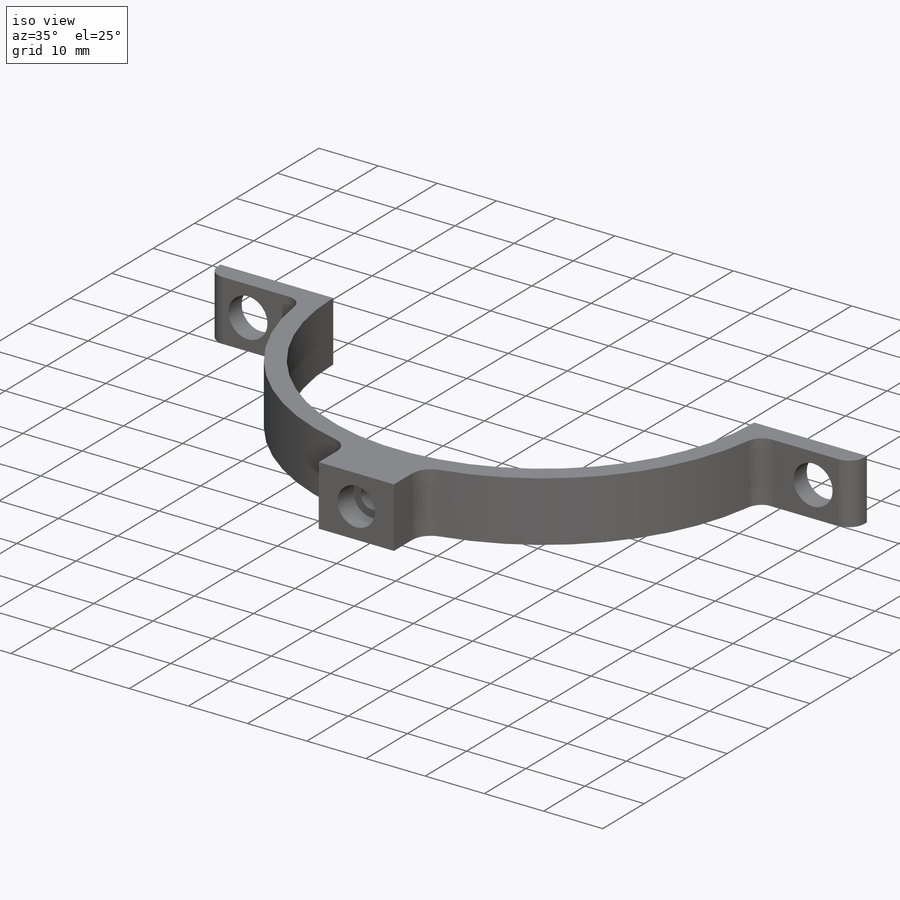
[diagram: iso view]
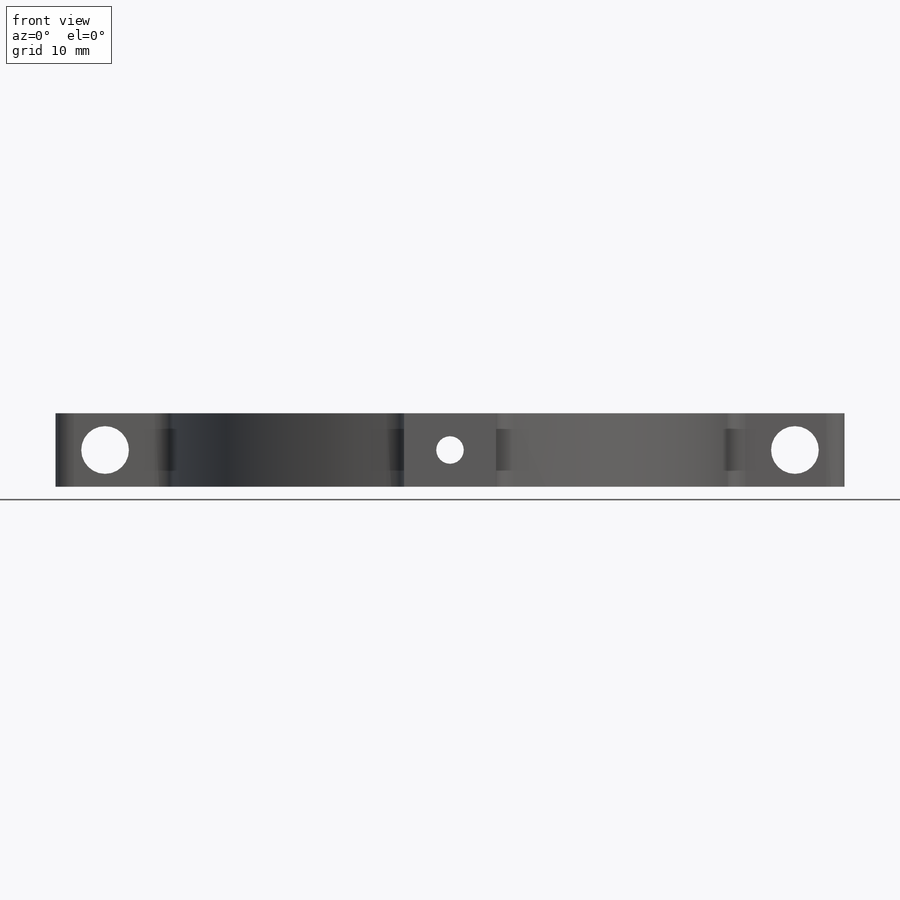
[diagram: front view]
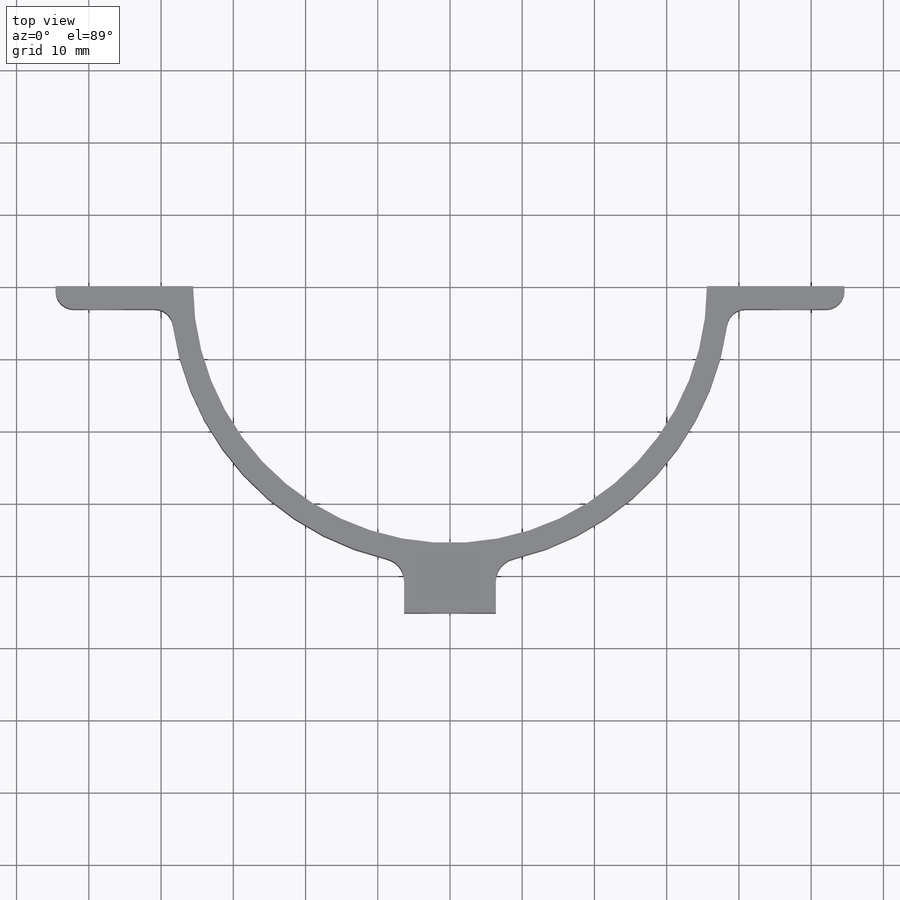
[diagram: top view]
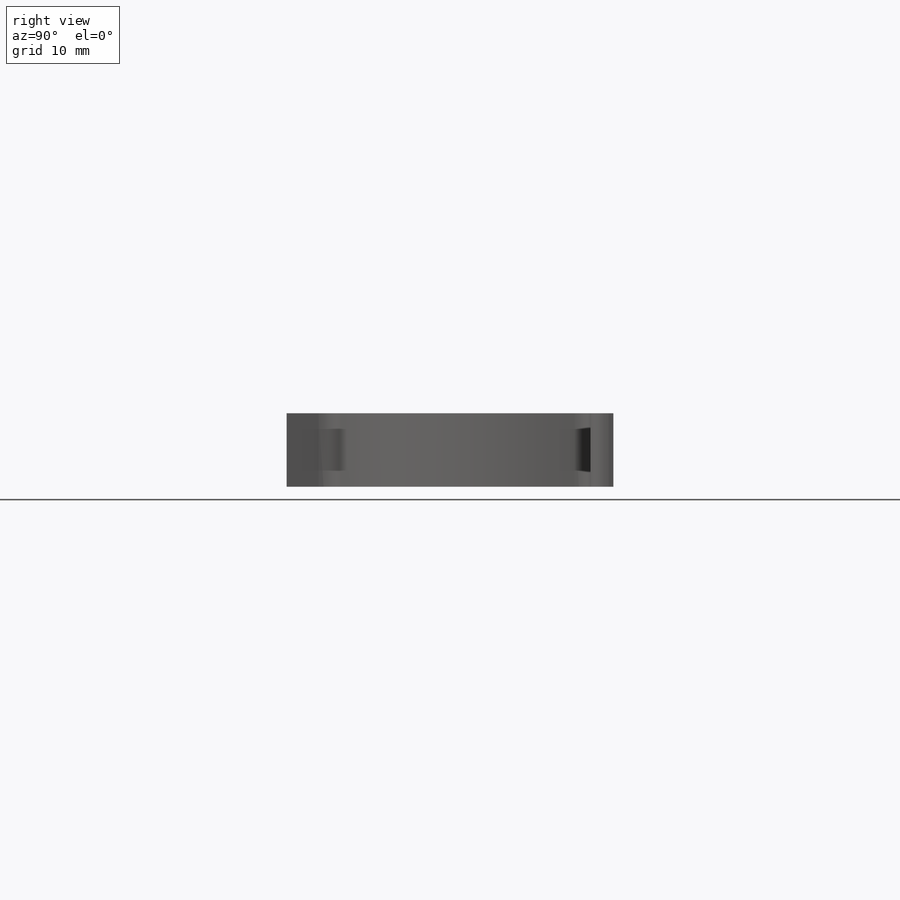
[diagram: right view]
SOLIDWORKS PART (.sldprt)
format: sldprt  version: not decoded by parser v0  size: 262,656 bytes
history: native  units: mm
features: sketch x6, extrude x3, fillet x3, cut_extrude x3, material x1, plane x1, thread x1 (+13 scaffold rows collapsed)
feature tree (31):
  scaffold x13  (default folders/planes/origin — collapsed)
  material  "AISI 1020 Steel, Cold Rolled"
  sketch  "Sketch1"  dims[c1.D1=71.12mm c1.D2=76.2mm c1.D5=41.275mm c2.D2=3.175mm c2.D3=3.175mm c2.D4=19.05mm c2.D5=53.975mm]
  extrude  "Boss-Extrude1"  Depth=10.16mm
  fillet  "Fillet1"  Radius=2.54mm
  sketch  "Sketch2"  dims[D1=6.604mm]
  cut_extrude  "Cut-Extrude1"  Depth=10.16mm
  fillet  "Fillet3"  Radius=2.54mm
  plane  "Plane2"
  sketch  "Sketch4"  dims[D1=12.7mm]
  extrude  "Boss-Extrude2"  [1 undecoded]
  extrude  "Boss-Extrude3"  [1 undecoded]
  sketch  "Sketch4<2>"  dims[D1=6.477mm]
  fillet  "Fillet4"  Radius=3.175mm
  sketch  "Sketch5"  dims[c1.D1=6.35mm c1.D2=6.35mm c2.D1=6.35mm]
  cut_extrude  "Cut-Extrude2"  Depth=3.81mm
  sketch  "Sketch7"  dims[D1=3.81mm]
  cut_extrude  "Cut-Extrude3"  [1 undecoded]
  thread  "Cosmetic Thread1"  Diameter=4.826mm  [1 undecoded]
decode coverage: 13 of 16 modeling features carry decoded parameters
note: 4 parameter values undecoded
summary: no parameter record found for 3 features
note: suppression state not decoded; provenance and decode notes live in map.json
